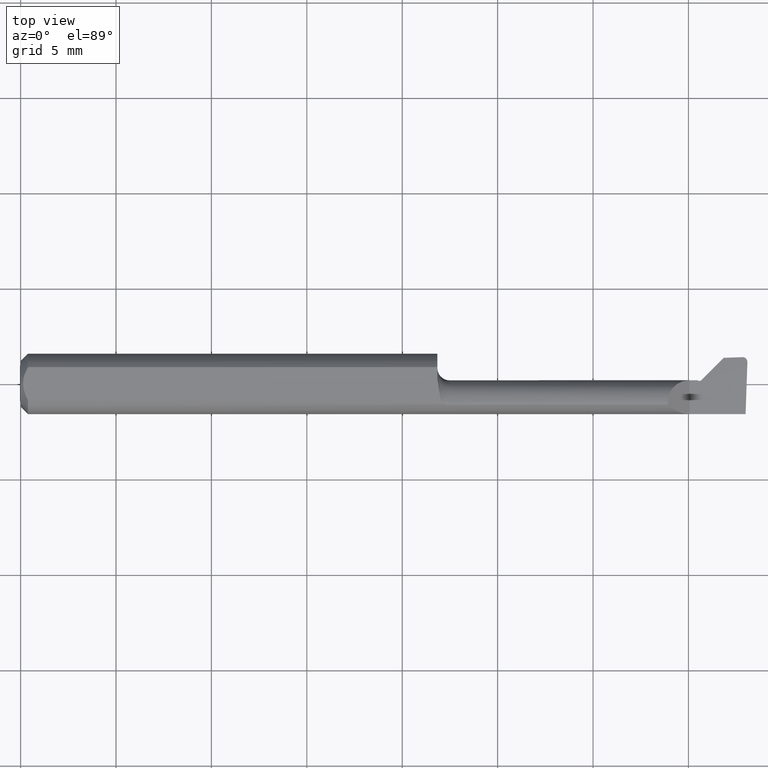
[diagram: clean part render]
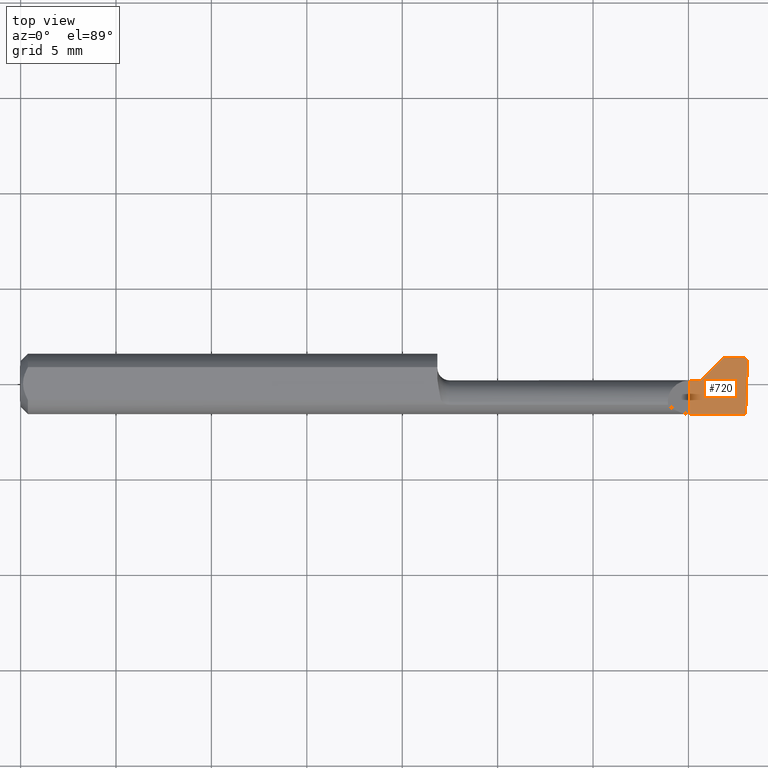
[diagram: same view with one face highlighted and labeled with its STEP entity id]
A machine part, top view. The second image highlights one B-rep face of the part: STEP entity #720.
In plain terms, the highlighted planar face has unit normal (-0, 0, -1).
Its self-contained STEP definition (entity closure, byte-faithful):
#5 = VERTEX_POINT ( 'NONE', #841 ) ;
#12 = CARTESIAN_POINT ( 'NONE',  ( 1.450400819999999813, 0.05391795846824057326, -1.867474214418929896E-17 ) ) ;
#14 = CARTESIAN_POINT ( 'NONE',  ( 1.380000000000000115, 0.007649999999999997947, -1.868634782302818344E-17 ) ) ;
#26 = DIRECTION ( 'NONE',  ( -1.000000000000000000, 0.000000000000000000, 0.000000000000000000 ) ) ;
#39 = DIRECTION ( 'NONE',  ( -0.000000000000000000, 0.000000000000000000, -1.000000000000000000 ) ) ;
#42 = LINE ( 'NONE', #192, #524 ) ;
#67 = VERTEX_POINT ( 'NONE', #12 ) ;
#69 = CARTESIAN_POINT ( 'NONE',  ( 1.489632428831576316, 0.05528795643703825202, -1.868634782302817419E-17 ) ) ;
#85 = EDGE_CURVE ( 'NONE', #293, #326, #486, .T. ) ;
#90 = CARTESIAN_POINT ( 'NONE',  ( 1.401984130307040388, 0.006221299368999757412, -3.414809992080329023E-17 ) ) ;
#94 = ORIENTED_EDGE ( 'NONE', *, *, #186, .F. ) ;
#97 = LINE ( 'NONE', #372, #702 ) ;
#104 = DIRECTION ( 'NONE',  ( 0.9993908270190959842, 0.03489949670249422459, 0.000000000000000000 ) ) ;
#121 = CARTESIAN_POINT ( 'NONE',  ( 1.489965954263643200, 0.05529378281360682740, -6.829619984160658046E-17 ) ) ;
#125 = ORIENTED_EDGE ( 'NONE', *, *, #85, .T. ) ;
#128 = EDGE_LOOP ( 'NONE', ( #125, #823, #203, #94, #427, #737, #487, #341, #769, #201 ) ) ;
#141 =( BOUNDED_CURVE ( )  B_SPLINE_CURVE ( 3, ( #817, #752, #543, #893 ),
 .UNSPECIFIED., .F., .F. ) 
 B_SPLINE_CURVE_WITH_KNOTS ( ( 4, 4 ),
 ( 3.909660172168312187, 4.677727690746868561 ),
 .UNSPECIFIED. ) 
 CURVE ( )  GEOMETRIC_REPRESENTATION_ITEM ( )  RATIONAL_B_SPLINE_CURVE ( ( 1.000000000000000000, 0.9514405870031137358, 0.9514405870031137358, 1.000000000000000000 ) ) 
 REPRESENTATION_ITEM ( '' )  );
#143 = CARTESIAN_POINT ( 'NONE',  ( 1.359132861531758607, -0.03735000000000000125, -1.868634782302817419E-17 ) ) ;
#172 = VECTOR ( 'NONE', #705, 39.37007874015748143 ) ;
#178 = CARTESIAN_POINT ( 'NONE',  ( 1.495813220813313693, -0.06235000000000000264, -2.641722387191573529E-17 ) ) ;
#182 = CARTESIAN_POINT ( 'NONE',  ( 1.489743654160768482, 0.05529184051112063375, -6.829619984160658046E-17 ) ) ;
#186 = EDGE_CURVE ( 'NONE', #67, #383, #867, .T. ) ;
#192 = CARTESIAN_POINT ( 'NONE',  ( 0.8600000000000000977, 0.007649999999999989274, -1.868634782302817419E-17 ) ) ;
#197 = EDGE_CURVE ( 'NONE', #293, #499, #97, .T. ) ;
#201 = ORIENTED_EDGE ( 'NONE', *, *, #197, .F. ) ;
#203 = ORIENTED_EDGE ( 'NONE', *, *, #228, .T. ) ;
#210 = LINE ( 'NONE', #143, #172 ) ;
#228 = EDGE_CURVE ( 'NONE', #683, #383, #511, .T. ) ;
#231 = VECTOR ( 'NONE', #743, 39.37007874015748143 ) ;
#250 = CARTESIAN_POINT ( 'NONE',  ( 1.397066040902762429, 0.007649999999999996213, -1.936423210115213672E-17 ) ) ;
#253 = CARTESIAN_POINT ( 'NONE',  ( 1.380000000000000115, 0.07629532499999999717, -1.868634782302818344E-17 ) ) ;
#258 =( BOUNDED_CURVE ( )  B_SPLINE_CURVE ( 3, ( #795, #714, #90, #723 ),
 .UNSPECIFIED., .F., .T. ) 
 B_SPLINE_CURVE_WITH_KNOTS ( ( 4, 4 ),
 ( 3.141592653589718509, 3.909660172168312187 ),
 .UNSPECIFIED. ) 
 CURVE ( )  GEOMETRIC_REPRESENTATION_ITEM ( )  RATIONAL_B_SPLINE_CURVE ( ( 1.000000000000000000, 0.9514405870031090728, 0.9514405870031090728, 1.000000000000000000 ) ) 
 REPRESENTATION_ITEM ( '' )  );
#283 = VERTEX_POINT ( 'NONE', #250 ) ;
#293 = VERTEX_POINT ( 'NONE', #178 ) ;
#315 = CARTESIAN_POINT ( 'NONE',  ( 1.404132861531759202, 0.007649999999999964120, -2.390366994456230070E-16 ) ) ;
#316 = EDGE_CURVE ( 'NONE', #326, #683, #641, .T. ) ;
#326 = VERTEX_POINT ( 'NONE', #832 ) ;
#341 = ORIENTED_EDGE ( 'NONE', *, *, #497, .F. ) ;
#372 = CARTESIAN_POINT ( 'NONE',  ( 1.500000000000000222, -0.06234999999999998183, -1.868634782302817419E-17 ) ) ;
#378 = CARTESIAN_POINT ( 'NONE',  ( 1.489965954263643200, 0.05529378281360682740, -6.829619984160658046E-17 ) ) ;
#383 = VERTEX_POINT ( 'NONE', #69 ) ;
#427 = ORIENTED_EDGE ( 'NONE', *, *, #635, .F. ) ;
#438 = CARTESIAN_POINT ( 'NONE',  ( -1.163171555311665939, -0.03735000000000000125, -1.868634782302817419E-17 ) ) ;
#466 = CARTESIAN_POINT ( 'NONE',  ( 1.380000000000000115, -0.06235000000000000264, -1.868634782302818344E-17 ) ) ;
#468 = EDGE_CURVE ( 'NONE', #5, #283, #141, .T. ) ;
#479 = VECTOR ( 'NONE', #783, 39.37007874015747433 ) ;
#486 = LINE ( 'NONE', #658, #479 ) ;
#487 = ORIENTED_EDGE ( 'NONE', *, *, #468, .T. ) ;
#497 = EDGE_CURVE ( 'NONE', #573, #283, #42, .T. ) ;
#499 = VERTEX_POINT ( 'NONE', #466 ) ;
#502 = VERTEX_POINT ( 'NONE', #315 ) ;
#511 =( BOUNDED_CURVE ( )  B_SPLINE_CURVE ( 3, ( #736, #741, #182, #668 ),
 .UNSPECIFIED., .F., .F. ) 
 B_SPLINE_CURVE_WITH_KNOTS ( ( 4, 4 ),
 ( 3.471551771640462469, 3.504617554267190904 ),
 .UNSPECIFIED. ) 
 CURVE ( )  GEOMETRIC_REPRESENTATION_ITEM ( )  RATIONAL_B_SPLINE_CURVE ( ( 1.000000000000000000, 0.9999088899102779315, 0.9999088899102779315, 1.000000000000000000 ) ) 
 REPRESENTATION_ITEM ( '' )  );
#524 = VECTOR ( 'NONE', #540, 39.37007874015748143 ) ;
#540 = DIRECTION ( 'NONE',  ( 1.000000000000000000, 0.000000000000000000, 0.000000000000000000 ) ) ;
#543 = CARTESIAN_POINT ( 'NONE',  ( 1.398058531733026966, 0.006721838814312643302, -3.414809992080329023E-17 ) ) ;
#572 = DIRECTION ( 'NONE',  ( -1.000000000000000000, -0.000000000000000000, -0.000000000000000000 ) ) ;
#573 = VERTEX_POINT ( 'NONE', #14 ) ;
#586 = VECTOR ( 'NONE', #104, 39.37007874015748143 ) ;
#602 = CARTESIAN_POINT ( 'NONE',  ( 1.499580804065988371, 0.04473527655191909119, -1.866307231897750198E-17 ) ) ;
#635 = EDGE_CURVE ( 'NONE', #502, #67, #210, .T. ) ;
#641 =( BOUNDED_CURVE ( )  B_SPLINE_CURVE ( 3, ( #602, #886, #813, #121 ),
 .UNSPECIFIED., .F., .F. ) 
 B_SPLINE_CURVE_WITH_KNOTS ( ( 4, 4 ),
 ( 1.910170056356179646, 3.471551771640462469 ),
 .UNSPECIFIED. ) 
 CURVE ( )  GEOMETRIC_REPRESENTATION_ITEM ( )  RATIONAL_B_SPLINE_CURVE ( ( 1.000000000000000000, 0.8069516682904596117, 0.8069516682904596117, 1.000000000000000000 ) ) 
 REPRESENTATION_ITEM ( '' )  );
#658 = CARTESIAN_POINT ( 'NONE',  ( 1.500541969582406931, 0.07205429466916821180, -1.868634782302818344E-17 ) ) ;
#661 = CARTESIAN_POINT ( 'NONE',  ( 1.380000000000000115, 0.07629532499999999717, -1.868634782302818344E-17 ) ) ;
#668 = CARTESIAN_POINT ( 'NONE',  ( 1.489632428831576316, 0.05528795643703825202, -1.868634782302817419E-17 ) ) ;
#683 = VERTEX_POINT ( 'NONE', #378 ) ;
#702 = VECTOR ( 'NONE', #572, 39.37007874015748143 ) ;
#705 = DIRECTION ( 'NONE',  ( 0.7071067811865514585, 0.7071067811865435759, 0.000000000000000000 ) ) ;
#714 = CARTESIAN_POINT ( 'NONE',  ( 1.403204700346071920, 0.006721838814312778611, -3.414809992080329023E-17 ) ) ;
#720 = ADVANCED_FACE ( 'NONE', ( #732 ), #872, .F. ) ;
#723 = CARTESIAN_POINT ( 'NONE',  ( 1.400648961908515844, 0.006221299368999729656, -3.414809992080329023E-17 ) ) ;
#732 = FACE_OUTER_BOUND ( 'NONE', #128, .T. ) ;
#736 = CARTESIAN_POINT ( 'NONE',  ( 1.489965954263643200, 0.05529378281360682740, -6.829619984160658046E-17 ) ) ;
#737 = ORIENTED_EDGE ( 'NONE', *, *, #785, .T. ) ;
#741 = CARTESIAN_POINT ( 'NONE',  ( 1.489854839434891165, 0.05529378281360683434, -6.829619984160658046E-17 ) ) ;
#743 = DIRECTION ( 'NONE',  ( -0.000000000000000000, 1.000000000000000000, -0.000000000000000000 ) ) ;
#752 = CARTESIAN_POINT ( 'NONE',  ( 1.399313793509991521, 0.006221299368999712309, -3.414809992080329023E-17 ) ) ;
#769 = ORIENTED_EDGE ( 'NONE', *, *, #822, .F. ) ;
#783 = DIRECTION ( 'NONE',  ( 0.03516126301284226707, 0.9993816516143079198, -8.514622150947768447E-19 ) ) ;
#785 = EDGE_CURVE ( 'NONE', #502, #5, #258, .T. ) ;
#795 = CARTESIAN_POINT ( 'NONE',  ( 1.404132861531759202, 0.007649999999999964120, -2.390366994456230070E-16 ) ) ;
#803 = LINE ( 'NONE', #253, #231 ) ;
#813 = CARTESIAN_POINT ( 'NONE',  ( 1.495827159012236729, 0.05529378281360692454, -6.829619984160658046E-17 ) ) ;
#817 = CARTESIAN_POINT ( 'NONE',  ( 1.400648961908515844, 0.006221299368999729656, -3.414809992080329023E-17 ) ) ;
#822 = EDGE_CURVE ( 'NONE', #499, #573, #803, .T. ) ;
#823 = ORIENTED_EDGE ( 'NONE', *, *, #316, .T. ) ;
#830 = AXIS2_PLACEMENT_3D ( 'NONE', #661, #39, #26 ) ;
#832 = CARTESIAN_POINT ( 'NONE',  ( 1.499580804065988371, 0.04473527655191909119, -1.866307231897750198E-17 ) ) ;
#841 = CARTESIAN_POINT ( 'NONE',  ( 1.400648961908515844, 0.006221299368999729656, -3.414809992080329023E-17 ) ) ;
#867 = LINE ( 'NONE', #438, #586 ) ;
#872 = PLANE ( 'NONE',  #830 ) ;
#886 = CARTESIAN_POINT ( 'NONE',  ( 1.499798834219135735, 0.05093230464145645509, -6.829619984160658046E-17 ) ) ;
#893 = CARTESIAN_POINT ( 'NONE',  ( 1.397066040902762429, 0.007649999999999996213, -1.936423210115213672E-17 ) ) ;